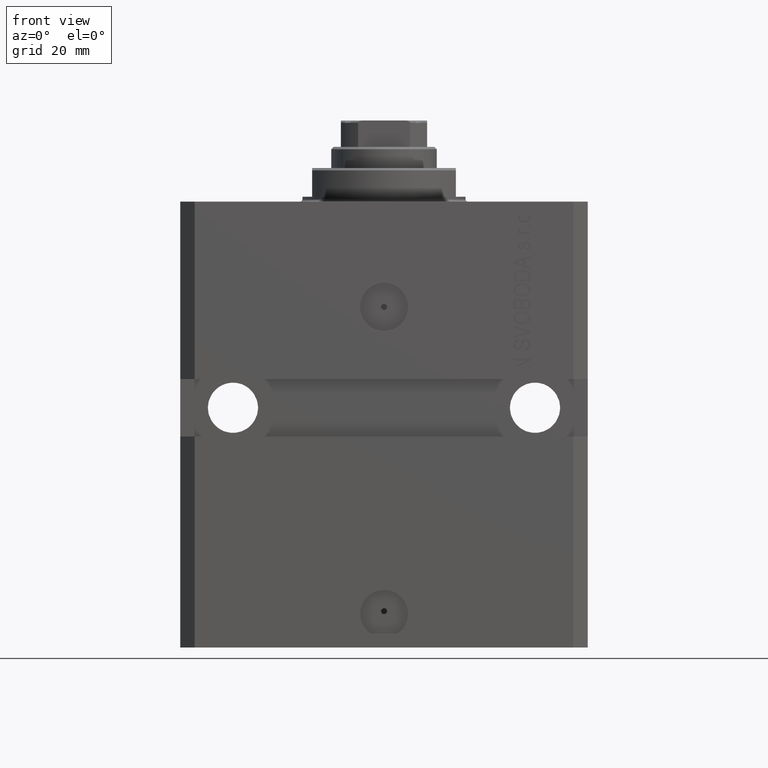
[diagram: clean part render]
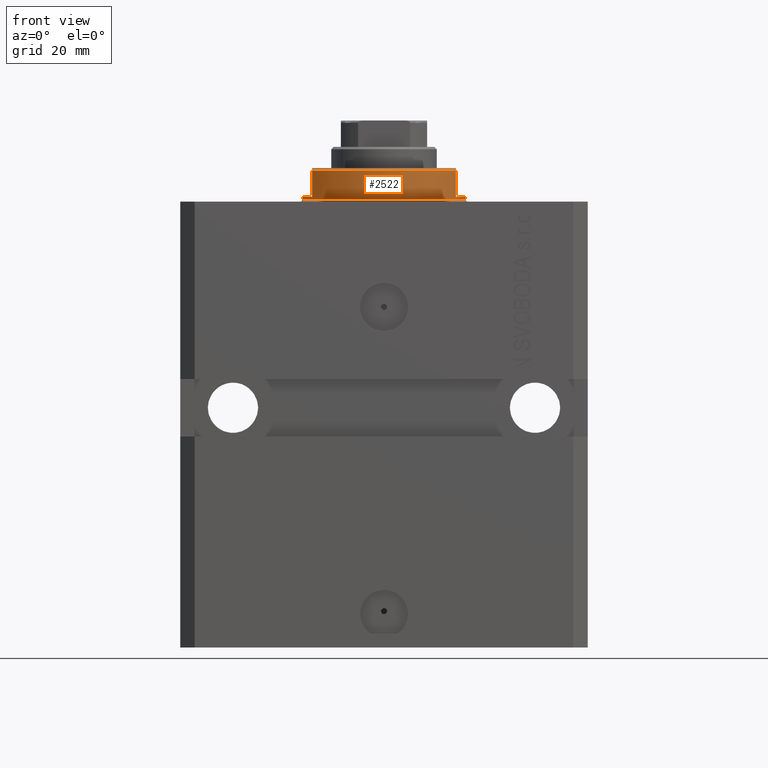
[diagram: same view with one face highlighted and labeled with its STEP entity id]
A machine part, front view. The second image highlights one B-rep face of the part: STEP entity #2522.
In plain terms, the highlighted cylindrical surface (partial cylindrical patch) has radius 17 mm, axis along (0, 0, -1).
Its self-contained STEP definition (entity closure, byte-faithful):
#845 = CARTESIAN_POINT ( 'NONE',  ( 15.00000000000000000, -8.000000000000001776, -6.500000000000000000 ) ) ;
#1121 = VECTOR ( 'NONE', #33259, 1000.000000000000000 ) ;
#1430 = CARTESIAN_POINT ( 'NONE',  ( 0.000000000000000000, 0.000000000000000000, -6.500000000000000000 ) ) ;
#2106 = AXIS2_PLACEMENT_3D ( 'NONE', #1430, #8467, #17983 ) ;
#2220 = ORIENTED_EDGE ( 'NONE', *, *, #29296, .F. ) ;
#2277 = ORIENTED_EDGE ( 'NONE', *, *, #5210, .T. ) ;
#2347 = FACE_OUTER_BOUND ( 'NONE', #10921, .T. ) ;
#2522 = ADVANCED_FACE ( 'NONE', ( #2347 ), #43598, .T. ) ;
#2692 = CARTESIAN_POINT ( 'NONE',  ( 0.000000000000000000, 0.000000000000000000, -0.4999999999999995559 ) ) ;
#2897 = ORIENTED_EDGE ( 'NONE', *, *, #21339, .T. ) ;
#4390 = DIRECTION ( 'NONE',  ( -1.000000000000000000, 0.000000000000000000, 0.000000000000000000 ) ) ;
#5210 = EDGE_CURVE ( 'NONE', #22968, #8366, #42654, .T. ) ;
#8048 = CARTESIAN_POINT ( 'NONE',  ( -17.00000000000000000, 2.081899558550500280E-15, -1.000000000000000000 ) ) ;
#8366 = VERTEX_POINT ( 'NONE', #845 ) ;
#8408 = VECTOR ( 'NONE', #24643, 1000.000000000000000 ) ;
#8467 = DIRECTION ( 'NONE',  ( 0.000000000000000000, 0.000000000000000000, 1.000000000000000000 ) ) ;
#8823 = CIRCLE ( 'NONE', #26907, 17.00000000000000000 ) ;
#10406 = CIRCLE ( 'NONE', #40844, 17.00000000000000000 ) ;
#10581 = DIRECTION ( 'NONE',  ( -0.000000000000000000, -0.000000000000000000, -1.000000000000000000 ) ) ;
#10921 = EDGE_LOOP ( 'NONE', ( #2220, #33622, #37482, #2277, #40621, #26703, #41010, #2897 ) ) ;
#12580 = VECTOR ( 'NONE', #42712, 1000.000000000000000 ) ;
#13318 = DIRECTION ( 'NONE',  ( 1.000000000000000000, 0.000000000000000000, 0.000000000000000000 ) ) ;
#14673 = LINE ( 'NONE', #42318, #8408 ) ;
#14815 = DIRECTION ( 'NONE',  ( 0.000000000000000000, 0.000000000000000000, -1.000000000000000000 ) ) ;
#15038 = CARTESIAN_POINT ( 'NONE',  ( 0.000000000000000000, 0.000000000000000000, -1.000000000000000000 ) ) ;
#15095 = EDGE_CURVE ( 'NONE', #19133, #42073, #8823, .T. ) ;
#16186 = DIRECTION ( 'NONE',  ( 1.000000000000000000, 0.000000000000000000, 0.000000000000000000 ) ) ;
#16304 = VERTEX_POINT ( 'NONE', #29650 ) ;
#16601 = CARTESIAN_POINT ( 'NONE',  ( 0.000000000000000000, 0.000000000000000000, -1.000000000000000000 ) ) ;
#17983 = DIRECTION ( 'NONE',  ( -1.000000000000000000, 0.000000000000000000, 0.000000000000000000 ) ) ;
#19133 = VERTEX_POINT ( 'NONE', #34882 ) ;
#19860 = LINE ( 'NONE', #33699, #1121 ) ;
#21339 = EDGE_CURVE ( 'NONE', #29615, #22411, #10406, .T. ) ;
#22082 = CARTESIAN_POINT ( 'NONE',  ( 15.00000000000000000, -8.000000000000001776, -7.000000000000000000 ) ) ;
#22411 = VERTEX_POINT ( 'NONE', #32358 ) ;
#22748 = VERTEX_POINT ( 'NONE', #8048 ) ;
#22968 = VERTEX_POINT ( 'NONE', #32249 ) ;
#23406 = CARTESIAN_POINT ( 'NONE',  ( 0.000000000000000000, 0.000000000000000000, -7.000000000000000000 ) ) ;
#24265 = DIRECTION ( 'NONE',  ( -1.000000000000000000, 0.000000000000000000, 0.000000000000000000 ) ) ;
#24643 = DIRECTION ( 'NONE',  ( -0.000000000000000000, -0.000000000000000000, 1.000000000000000000 ) ) ;
#24645 = EDGE_CURVE ( 'NONE', #16304, #22968, #19860, .T. ) ;
#26703 = ORIENTED_EDGE ( 'NONE', *, *, #15095, .F. ) ;
#26907 = AXIS2_PLACEMENT_3D ( 'NONE', #16601, #44461, #24265 ) ;
#27788 = DIRECTION ( 'NONE',  ( -0.000000000000000000, -0.000000000000000000, 1.000000000000000000 ) ) ;
#29296 = EDGE_CURVE ( 'NONE', #22748, #22411, #14673, .T. ) ;
#29615 = VERTEX_POINT ( 'NONE', #38535 ) ;
#29650 = CARTESIAN_POINT ( 'NONE',  ( -14.99999999999999645, -8.000000000000003553, -1.000000000000000000 ) ) ;
#30029 = CIRCLE ( 'NONE', #36547, 17.00000000000000000 ) ;
#32249 = CARTESIAN_POINT ( 'NONE',  ( -15.00000000000000000, -8.000000000000001776, -6.500000000000000888 ) ) ;
#32358 = CARTESIAN_POINT ( 'NONE',  ( -17.00000000000000000, 2.081899558550500280E-15, -0.4999999999999995559 ) ) ;
#33259 = DIRECTION ( 'NONE',  ( 0.000000000000000000, 0.000000000000000000, -1.000000000000000000 ) ) ;
#33609 = EDGE_CURVE ( 'NONE', #42073, #8366, #39552, .T. ) ;
#33622 = ORIENTED_EDGE ( 'NONE', *, *, #37139, .F. ) ;
#33699 = CARTESIAN_POINT ( 'NONE',  ( -15.00000000000000000, -8.000000000000001776, -7.000000000000000000 ) ) ;
#33894 = AXIS2_PLACEMENT_3D ( 'NONE', #23406, #39754, #16186 ) ;
#34882 = CARTESIAN_POINT ( 'NONE',  ( 17.00000000000000000, 0.000000000000000000, -1.000000000000000000 ) ) ;
#35983 = VECTOR ( 'NONE', #27788, 1000.000000000000000 ) ;
#36547 = AXIS2_PLACEMENT_3D ( 'NONE', #15038, #14815, #4390 ) ;
#37139 = EDGE_CURVE ( 'NONE', #16304, #22748, #30029, .T. ) ;
#37482 = ORIENTED_EDGE ( 'NONE', *, *, #24645, .T. ) ;
#37555 = LINE ( 'NONE', #41844, #35983 ) ;
#38535 = CARTESIAN_POINT ( 'NONE',  ( 17.00000000000000000, 0.000000000000000000, -0.4999999999999995559 ) ) ;
#39552 = LINE ( 'NONE', #22082, #12580 ) ;
#39754 = DIRECTION ( 'NONE',  ( -0.000000000000000000, -0.000000000000000000, 1.000000000000000000 ) ) ;
#40621 = ORIENTED_EDGE ( 'NONE', *, *, #33609, .F. ) ;
#40844 = AXIS2_PLACEMENT_3D ( 'NONE', #2692, #10581, #13318 ) ;
#41010 = ORIENTED_EDGE ( 'NONE', *, *, #42707, .T. ) ;
#41844 = CARTESIAN_POINT ( 'NONE',  ( 17.00000000000000000, 0.000000000000000000, -7.000000000000000000 ) ) ;
#42073 = VERTEX_POINT ( 'NONE', #43890 ) ;
#42318 = CARTESIAN_POINT ( 'NONE',  ( -17.00000000000000000, 2.081899558550500280E-15, -7.000000000000000000 ) ) ;
#42654 = CIRCLE ( 'NONE', #2106, 17.00000000000000000 ) ;
#42707 = EDGE_CURVE ( 'NONE', #19133, #29615, #37555, .T. ) ;
#42712 = DIRECTION ( 'NONE',  ( 0.000000000000000000, 0.000000000000000000, -1.000000000000000000 ) ) ;
#43598 = CYLINDRICAL_SURFACE ( 'NONE', #33894, 17.00000000000000000 ) ;
#43890 = CARTESIAN_POINT ( 'NONE',  ( 14.99999999999999645, -8.000000000000003553, -1.000000000000000000 ) ) ;
#44461 = DIRECTION ( 'NONE',  ( 0.000000000000000000, 0.000000000000000000, -1.000000000000000000 ) ) ;